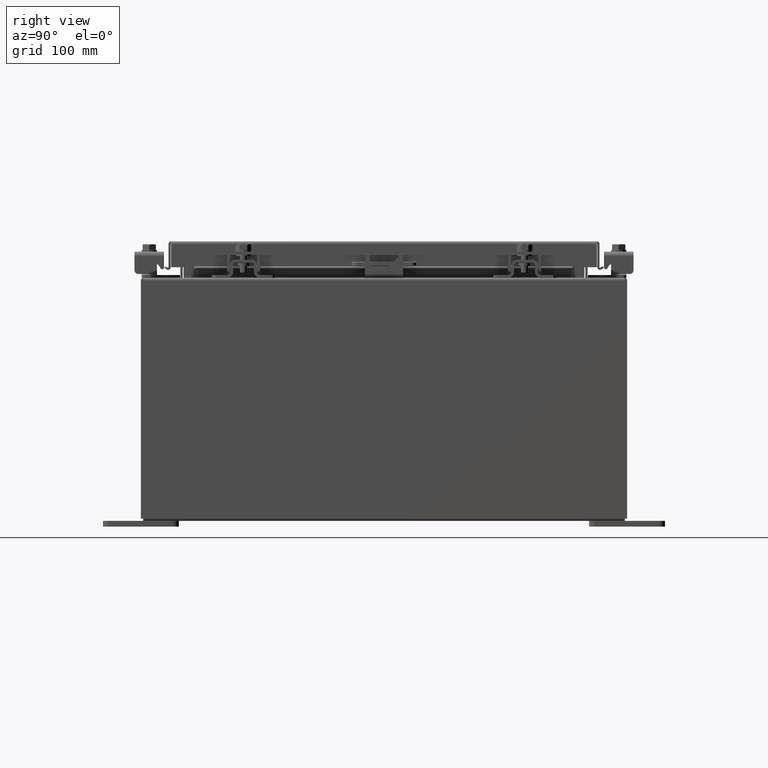
[diagram: clean part render]
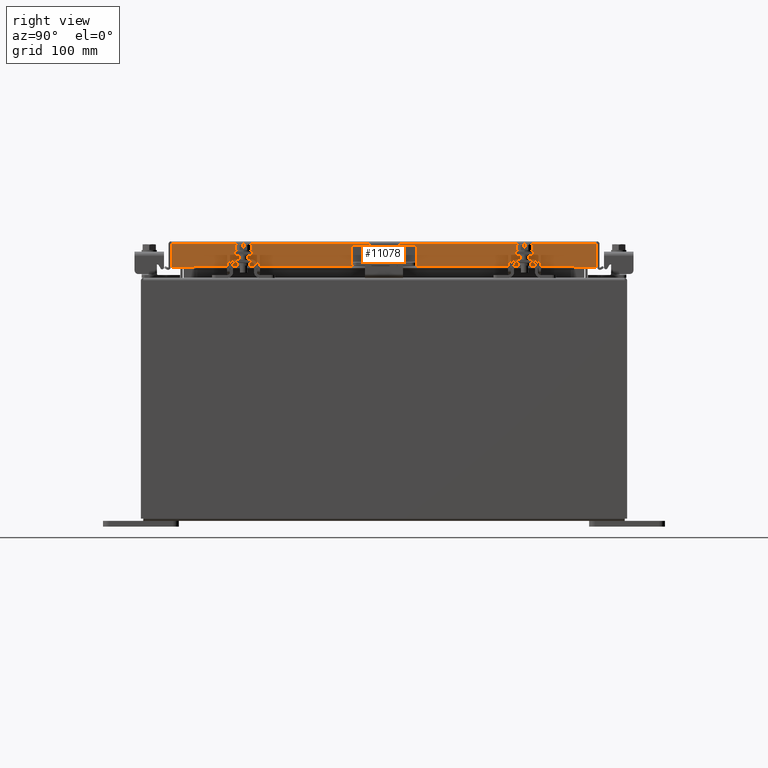
[diagram: same view with one face highlighted and labeled with its STEP entity id]
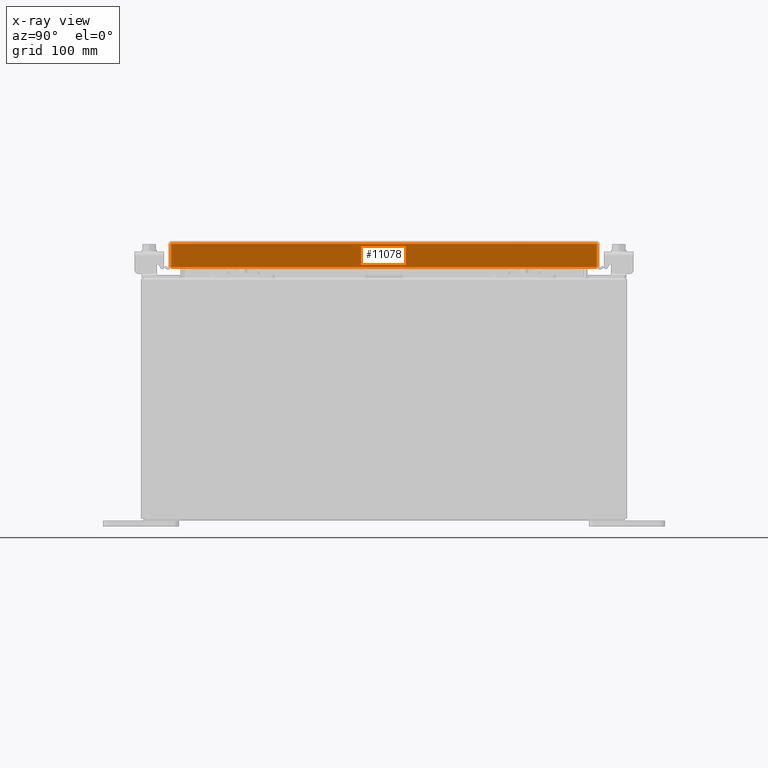
[diagram: x-ray of the same camera — body ghosted, the highlighted face saturated]
A machine part, right view. The second image highlights one B-rep face of the part: STEP entity #11078.
The next image is the same camera in x-ray: the body ghosted, the highlighted face saturated — about 0% of this face is hidden behind the body in this view.
In plain terms, the highlighted planar face has unit normal (1, 0, 0).
Its self-contained STEP definition (entity closure, byte-faithful):
#2604 = DIRECTION ( 'NONE',  ( 0.0000000000000000000, -1.000000000000000000, 0.0000000000000000000 ) ) ;
#3423 = VECTOR ( 'NONE', #21882, 39.37007874015748100 ) ;
#4937 = DIRECTION ( 'NONE',  ( 1.000000000000000000, 0.0000000000000000000, 2.818880942772360100E-015 ) ) ;
#5162 = VECTOR ( 'NONE', #20066, 39.37007874015748100 ) ;
#5375 = EDGE_CURVE ( 'NONE', #24693, #21058, #13803, .T. ) ;
#5628 = FACE_OUTER_BOUND ( 'NONE', #7930, .T. ) ;
#5890 = CARTESIAN_POINT ( 'NONE',  ( 5.077999999999996700, 6.255157864376273300, -0.8500000000000006400 ) ) ;
#5945 = CARTESIAN_POINT ( 'NONE',  ( 5.077999999999998500, 7.005157864376269700, -0.08769999999999951400 ) ) ;
#6240 = CARTESIAN_POINT ( 'NONE',  ( 5.077999999999998500, 7.005157864376269700, 6.349184700164955700E-014 ) ) ;
#6446 = VERTEX_POINT ( 'NONE', #5945 ) ;
#6560 = CARTESIAN_POINT ( 'NONE',  ( 5.078000000000001200, -7.094000000000000300, -0.8499999999999996400 ) ) ;
#6984 = ORIENTED_EDGE ( 'NONE', *, *, #7495, .F. ) ;
#7299 = VERTEX_POINT ( 'NONE', #21510 ) ;
#7495 = EDGE_CURVE ( 'NONE', #7299, #20449, #21257, .T. ) ;
#7855 = VECTOR ( 'NONE', #16026, 39.37007874015748100 ) ;
#7930 = EDGE_LOOP ( 'NONE', ( #17437, #25175, #20963, #6984, #23224, #9636 ) ) ;
#8257 = DIRECTION ( 'NONE',  ( -2.818880942772360100E-015, -6.982962677686267500E-015, 1.000000000000000000 ) ) ;
#8610 = CARTESIAN_POINT ( 'NONE',  ( 5.077999999999998500, -7.005157864376269700, -0.08769999999999897300 ) ) ;
#8747 = LINE ( 'NONE', #26042, #3423 ) ;
#9636 = ORIENTED_EDGE ( 'NONE', *, *, #16984, .T. ) ;
#9905 = AXIS2_PLACEMENT_3D ( 'NONE', #16940, #4937, #18960 ) ;
#11078 = ADVANCED_FACE ( 'NONE', ( #5628 ), #12912, .T. ) ;
#12912 = PLANE ( 'NONE',  #9905 ) ;
#13803 = LINE ( 'NONE', #14004, #7855 ) ;
#13971 = EDGE_CURVE ( 'NONE', #20449, #24693, #14944, .T. ) ;
#14004 = CARTESIAN_POINT ( 'NONE',  ( 5.078000000000001200, -7.094000000000000300, -0.8499999999999996400 ) ) ;
#14165 = VECTOR ( 'NONE', #8257, 39.37007874015748100 ) ;
#14443 = VERTEX_POINT ( 'NONE', #8610 ) ;
#14944 = LINE ( 'NONE', #21289, #15582 ) ;
#15202 = LINE ( 'NONE', #22103, #5162 ) ;
#15582 = VECTOR ( 'NONE', #23330, 39.37007874015748100 ) ;
#16026 = DIRECTION ( 'NONE',  ( 0.0000000000000000000, -1.000000000000000000, 0.0000000000000000000 ) ) ;
#16940 = CARTESIAN_POINT ( 'NONE',  ( 5.077999999999998500, 0.0000000000000000000, 1.457509108340962400E-014 ) ) ;
#16984 = EDGE_CURVE ( 'NONE', #6446, #14443, #8747, .T. ) ;
#17437 = ORIENTED_EDGE ( 'NONE', *, *, #25245, .F. ) ;
#18960 = DIRECTION ( 'NONE',  ( 2.818880942772360100E-015, 0.0000000000000000000, -1.000000000000000000 ) ) ;
#19837 = CARTESIAN_POINT ( 'NONE',  ( 5.077999999999996700, -6.255157864376264400, -0.8500000000000006400 ) ) ;
#20066 = DIRECTION ( 'NONE',  ( -2.818880942772360100E-015, -6.982962677686267500E-015, 1.000000000000000000 ) ) ;
#20449 = VERTEX_POINT ( 'NONE', #5890 ) ;
#20963 = ORIENTED_EDGE ( 'NONE', *, *, #13971, .F. ) ;
#21058 = VERTEX_POINT ( 'NONE', #23817 ) ;
#21257 = LINE ( 'NONE', #6560, #26001 ) ;
#21289 = CARTESIAN_POINT ( 'NONE',  ( 5.077999999999996700, 6.255157864376273300, -0.8500000000000006400 ) ) ;
#21510 = CARTESIAN_POINT ( 'NONE',  ( 5.078000000000001200, 7.005157864376275100, -0.8499999999999996400 ) ) ;
#21882 = DIRECTION ( 'NONE',  ( -2.171061248348209200E-031, -1.000000000000000000, 7.701855070945201600E-017 ) ) ;
#22103 = CARTESIAN_POINT ( 'NONE',  ( 5.077999999999998500, -7.005157864376269700, -0.07469999999999978000 ) ) ;
#22308 = EDGE_CURVE ( 'NONE', #7299, #6446, #24907, .T. ) ;
#23224 = ORIENTED_EDGE ( 'NONE', *, *, #22308, .T. ) ;
#23330 = DIRECTION ( 'NONE',  ( 0.0000000000000000000, -1.000000000000000000, 0.0000000000000000000 ) ) ;
#23817 = CARTESIAN_POINT ( 'NONE',  ( 5.078000000000001200, -7.005157864376264400, -0.8499999999999996400 ) ) ;
#24693 = VERTEX_POINT ( 'NONE', #19837 ) ;
#24907 = LINE ( 'NONE', #6240, #14165 ) ;
#25175 = ORIENTED_EDGE ( 'NONE', *, *, #5375, .F. ) ;
#25245 = EDGE_CURVE ( 'NONE', #21058, #14443, #15202, .T. ) ;
#26001 = VECTOR ( 'NONE', #2604, 39.37007874015748100 ) ;
#26042 = CARTESIAN_POINT ( 'NONE',  ( 5.077999999999998500, -6.754526897220028000E-018, -0.08769999999999951400 ) ) ;